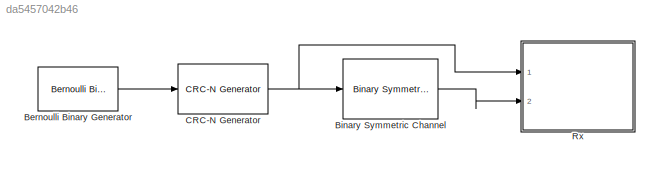
MODEL slx_da5457042b46
KIND model
BLOCK [Reference] Bernoulli Binary Generator  REF=commrandsrc2/Bernoulli Binary
Generator
  P = 0.5
  Ports = [0, 1]
  SourceBlock = commrandsrc2/Bernoulli Binary\nGenerator
  SourceType = Bernoulli Binary Generator
  Ts = 1/64000000
  frameBased = on
  orient = off
  outDataType = double
  sampPerFrame = 64
  seed = 61
BLOCK [Reference] Binary Symmetric Channel  REF=commchan3/Binary Symmetric
Channel
  E = off
  P = BER
  Ports = [1, 1]
  SourceBlock = commchan3/Binary Symmetric\nChannel
  SourceType = Binary Symmetric Channel
  outDtype = double
  s = 71
BLOCK [Reference] CRC-N Generator  REF=commcrc2/CRC-N Generator
  Ports = [1, 1]
  SourceBlock = commcrc2/CRC-N Generator
  SourceType = CRC-N Generator
  crcMethod = CRC-16
  iniStates = [0]
  numChecksums = 1
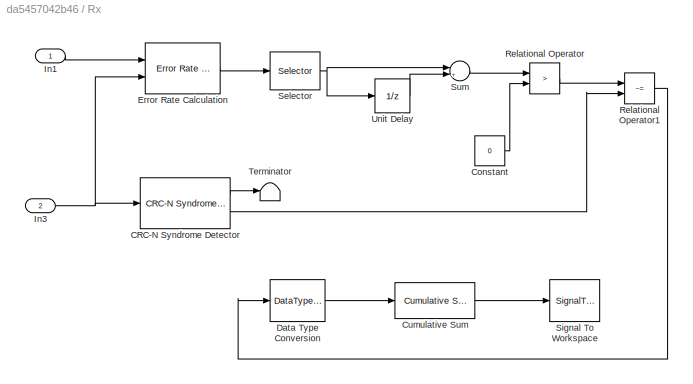
BLOCK [SubSystem] Rx
  Ports = [2]
  RequestExecContextInheritance = off
BLOCK [Reference] Rx/CRC-N Syndrome Detector  REF=commcrc2/CRC-N Syndrome
Detector
  Ports = [1, 2]
  SourceBlock = commcrc2/CRC-N Syndrome\nDetector
  SourceType = CRC-N Syndrome Detector
  crcMethod = CRC-16
  iniStates = [0]
  numChecksums = 1
BLOCK [Constant] Rx/Constant
  Value = 0
BLOCK [Reference] Rx/Cumulative Sum  REF=dspmathops/Cumulative
Sum
  InputProcessing = Columns as channels (frame based)
  LockScale = off
  Ports = [1, 1]
  SourceBlock = dspmathops/Cumulative\nSum
  SourceType = Cumulative Sum
  UserDataPersistent = on
  accumDataTypeStr = Inherit: Same as input
  accumFracLength = 30
  accumLastDataTypeStr = Inherit: Same as input
  accumMode = Same as input
  accumWordLength = 32
  dim = Channels (running sum)
  outputDataTypeStr = Inherit: Same as accumulator
  outputFracLength = 15
  outputLastDataTypeStr = Inherit: Same as accumulator
  outputMax = []
  outputMin = []
  outputMode = Same as accumulator
  outputWordLength = 16
  overflowMode = off
  reset_popup = None
  roundingMode = Floor
BLOCK [DataTypeConversion] Rx/Data Type Conversion
  RndMeth = Floor
  SaturateOnIntegerOverflow = off
BLOCK [Reference] Rx/Error Rate Calculation  REF=commsink2/Error Rate
Calculation
  N = 0
  PMode = Port
  Ports = [2, 1]
  RsMode2 = off
  SourceBlock = commsink2/Error Rate\nCalculation
  SourceType = Error Rate Calculation
  WsName = ErrorVec
  cp_mode = Entire frame
  maxBits = 1e6
  numErr = 100
  st_delay = 0
  stop = off
  subframe = []
BLOCK [Inport] Rx/In1
  IconDisplay = Port number
BLOCK [Inport] Rx/In3
  IconDisplay = Port number
  Port = 2
BLOCK [RelationalOperator] Rx/Relational Operator
  InputSameDT = off
  Operator = >
  OutDataTypeStr = boolean
  Ports = [2, 1]
BLOCK [RelationalOperator] Rx/Relational Operator1
  InputSameDT = off
  Operator = ~=
  OutDataTypeStr = boolean
  Ports = [2, 1]
BLOCK [Selector] Rx/Selector
  Indices = [2]
  InputPortWidth = 3
  Ports = [1, 1]
BLOCK [SignalToWorkspace] Rx/Signal To Workspace
  CopyFcn = dspblkcopystw(gcbh);
  MaxDataPoints = inf
  Ports = [1]
  VariableName = MissedFrame
BLOCK [Sum] Rx/Sum
  IconShape = round
  InputSameDT = off
  Inputs = |+-
  OutDataTypeStr = Inherit: Inherit via internal rule
  Ports = [2, 1]
  SaturateOnIntegerOverflow = off
BLOCK [Terminator] Rx/Terminator
BLOCK [UnitDelay] Rx/Unit Delay
  InputProcessing = Elements as channels (sample based)
  SampleTime = -1
LINE Bernoulli Binary Generator:1 -> CRC-N Generator:1
LINE Binary Symmetric Channel:1 -> Rx:2
NET CRC-N Generator:1 -> Binary Symmetric Channel:1, Rx:1
LINE Rx/CRC-N Syndrome Detector:1 -> Rx/Terminator:1
LINE Rx/CRC-N Syndrome Detector:2 -> Rx/Relational Operator1:2
LINE Rx/Constant:1 -> Rx/Relational Operator:2
LINE Rx/Cumulative Sum:1 -> Rx/Signal To Workspace:1
LINE Rx/Data Type Conversion:1 -> Rx/Cumulative Sum:1
LINE Rx/Error Rate Calculation:1 -> Rx/Selector:1
LINE Rx/In1:1 -> Rx/Error Rate Calculation:1
NET Rx/In3:1 -> Rx/CRC-N Syndrome Detector:1, Rx/Error Rate Calculation:2
LINE Rx/Relational Operator1:1 -> Rx/Data Type Conversion:1
LINE Rx/Relational Operator:1 -> Rx/Relational Operator1:1
NET Rx/Selector:1 -> Rx/Sum:1, Rx/Unit Delay:1
LINE Rx/Sum:1 -> Rx/Relational Operator:1
LINE Rx/Unit Delay:1 -> Rx/Sum:2
note: NET lines group one-source signal fan-out (src -> all destinations, sorted); 1:1 wires keep LINE
